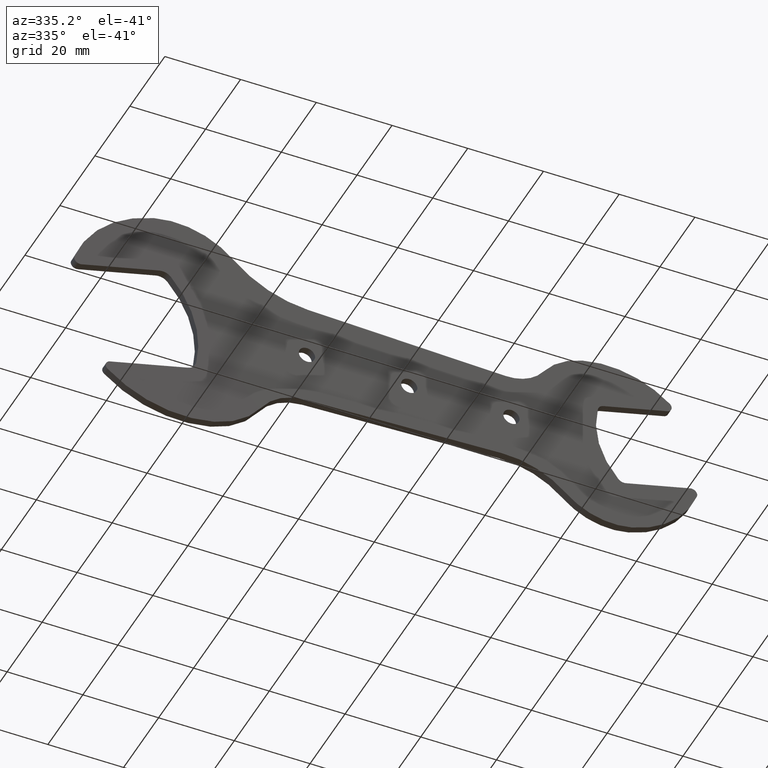
[diagram: clean part render]
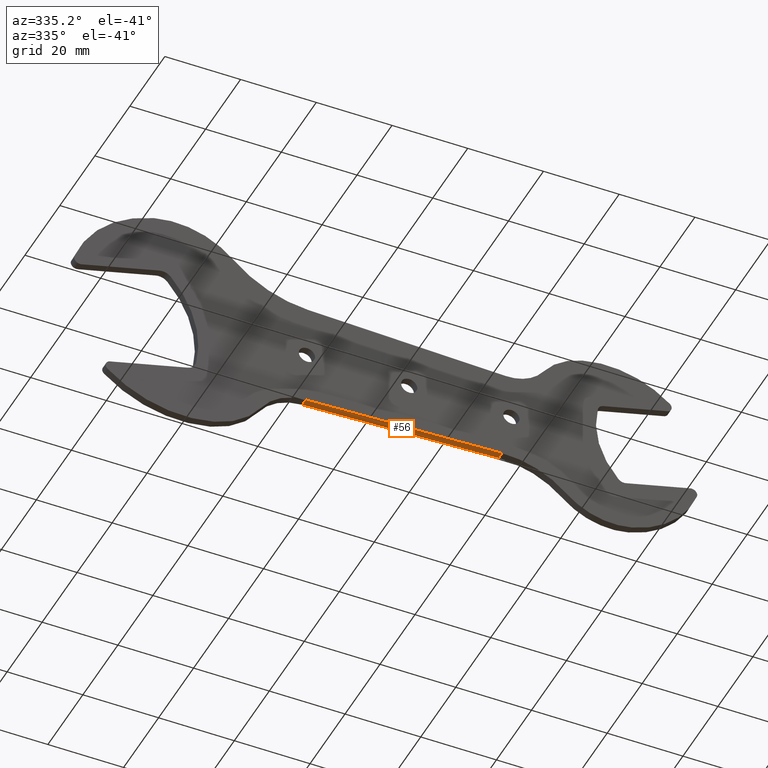
[diagram: same view with one face highlighted and labeled with its STEP entity id]
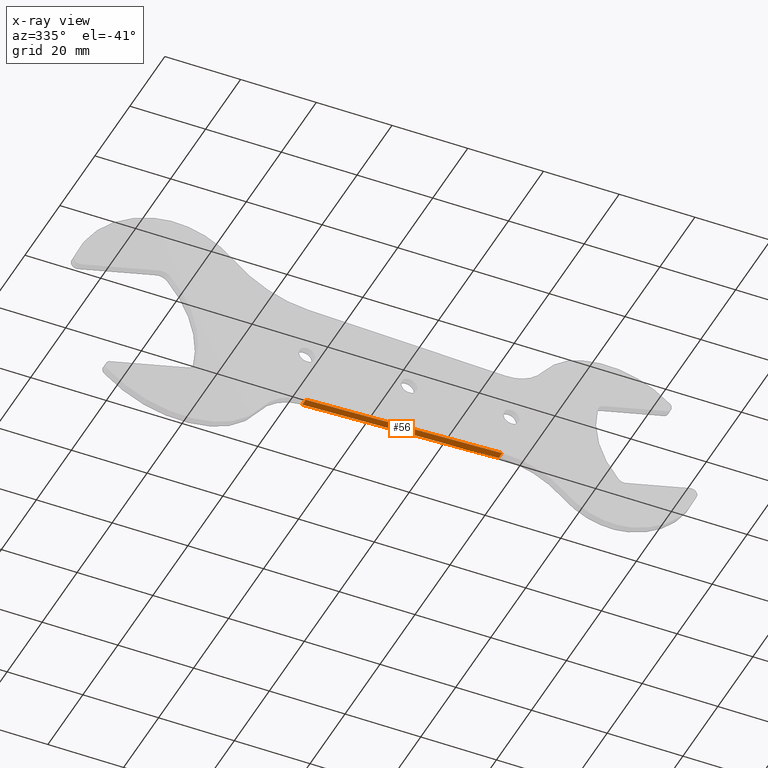
[diagram: x-ray of the same camera — body ghosted, the highlighted face saturated]
A machine part, auxiliary view. The second image highlights one B-rep face of the part: STEP entity #56.
The next image is the same camera in x-ray: the body ghosted, the highlighted face saturated — about 0% of this face is hidden behind the body in this view.
In plain terms, the highlighted planar face has unit normal (-0.0374, 0, 0.9993).
Its self-contained STEP definition (entity closure, byte-faithful):
#56=ADVANCED_FACE('',(#243),#242,.F.);
#242=PLANE('',#531);
#243=FACE_OUTER_BOUND('',#532,.T.);
#528=CARTESIAN_POINT('',(-3.25083024011E+01,-2.00000000000E-01,-1.45939440653E+01));
#529=DIRECTION('',(-3.74269334824E-02,0.00000000000E+00,9.99299366882E-01));
#530=DIRECTION('',(9.99299366882E-01,0.00000000000E+00,3.74269334824E-02));
#531=AXIS2_PLACEMENT_3D('',#528,#529,#530);
#532=EDGE_LOOP('',(#752,#753,#754,#755));
#752=ORIENTED_EDGE('',*,*,#845,.T.);
#753=ORIENTED_EDGE('',*,*,#914,.F.);
#754=ORIENTED_EDGE('',*,*,#884,.F.);
#755=ORIENTED_EDGE('',*,*,#915,.T.);
#845=EDGE_CURVE('',#1026,#1019,#1027,.T.);
#884=EDGE_CURVE('',#1289,#1296,#1297,.T.);
#914=EDGE_CURVE('',#1296,#1019,#1494,.T.);
#915=EDGE_CURVE('',#1289,#1026,#1500,.T.);
#1019=VERTEX_POINT('',#1673);
#1026=VERTEX_POINT('',#1678);
#1027=LINE('',#1679,#1680);
#1289=VERTEX_POINT('',#1855);
#1296=VERTEX_POINT('',#1860);
#1297=LINE('',#1861,#1862);
#1494=LINE('',#1984,#1985);
#1500=LINE('',#1987,#1988);
#1673=CARTESIAN_POINT('',(-2.73258209085E+01,0.00000000000E+00,-1.43998436820E+01));
#1678=CARTESIAN_POINT('',(2.44989940176E+01,0.00000000000E+00,-1.24588398495E+01));
#1679=CARTESIAN_POINT('',(2.44989940176E+01,-1.42108547152E-14,-1.24588398495E+01));
#1680=VECTOR('',#1681,5.18611505658E+01);
#1681=DIRECTION('',(-9.99299366882E-01,0.00000000000E+00,-3.74269334824E-02));
#1855=CARTESIAN_POINT('',(2.44989940176E+01,2.00000000000E+00,-1.24588398495E+01));
#1860=CARTESIAN_POINT('',(-2.73258209085E+01,2.00000000000E+00,-1.43998436820E+01));
#1861=CARTESIAN_POINT('',(2.44989940176E+01,2.00000000000E+00,-1.24588398495E+01));
#1862=VECTOR('',#1863,5.18611505658E+01);
#1863=DIRECTION('',(-9.99299366882E-01,0.00000000000E+00,-3.74269334824E-02));
#1984=CARTESIAN_POINT('',(-2.73258209085E+01,2.00000000000E+00,-1.43998436820E+01));
#1985=VECTOR('',#1986,2.00000000000E+00);
#1986=DIRECTION('',(0.00000000000E+00,-1.00000000000E+00,0.00000000000E+00));
#1987=CARTESIAN_POINT('',(2.44989940176E+01,2.00000000000E+00,-1.24588398495E+01));
#1988=VECTOR('',#1989,2.00000000000E+00);
#1989=DIRECTION('',(0.00000000000E+00,-1.00000000000E+00,0.00000000000E+00));